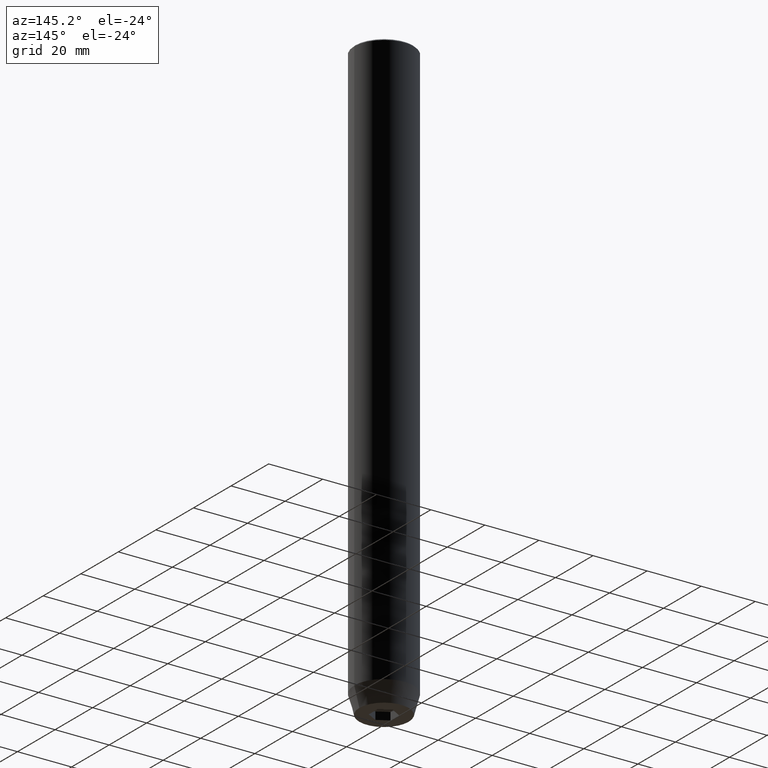
[diagram: clean part render]
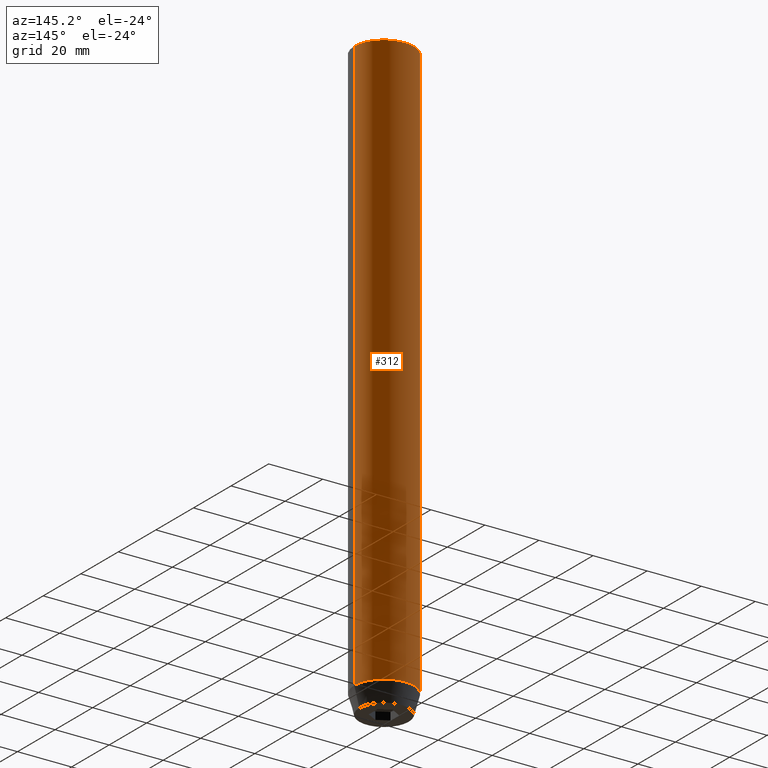
[diagram: same view with one face highlighted and labeled with its STEP entity id]
A machine part, auxiliary view. The second image highlights one B-rep face of the part: STEP entity #312.
In plain terms, the highlighted cylindrical surface (edge-blend (fillet) strip) has radius 11 mm, axis along (-0, -0, 1).
Its self-contained STEP definition (entity closure, byte-faithful):
#19 = EDGE_CURVE ( 'NONE', #83, #443, #28, .T. ) ;
#21 = CARTESIAN_POINT ( 'NONE',  ( 0.000000000000000000, 0.000000000000000000, 0.000000000000000000 ) ) ;
#28 = CIRCLE ( 'NONE', #497, 11.00000000000000000 ) ;
#41 = VECTOR ( 'NONE', #330, 1000.000000000000000 ) ;
#45 = CARTESIAN_POINT ( 'NONE',  ( 11.00000000000000000, 0.000000000000000000, -0.4999999999999726885 ) ) ;
#56 = LINE ( 'NONE', #239, #398 ) ;
#57 = AXIS2_PLACEMENT_3D ( 'NONE', #565, #400, #160 ) ;
#65 = ORIENTED_EDGE ( 'NONE', *, *, #126, .F. ) ;
#71 = ORIENTED_EDGE ( 'NONE', *, *, #319, .T. ) ;
#83 = VERTEX_POINT ( 'NONE', #283 ) ;
#126 = EDGE_CURVE ( 'NONE', #83, #473, #56, .T. ) ;
#131 = CYLINDRICAL_SURFACE ( 'NONE', #581, 11.00000000000000000 ) ;
#133 = CARTESIAN_POINT ( 'NONE',  ( -11.00000000000000000, 1.347111479062088405E-15, -212.9999999999999716 ) ) ;
#160 = DIRECTION ( 'NONE',  ( 1.000000000000000000, 0.000000000000000000, 0.000000000000000000 ) ) ;
#172 = EDGE_LOOP ( 'NONE', ( #256, #211, #71, #65 ) ) ;
#186 = CIRCLE ( 'NONE', #57, 11.00000000000000000 ) ;
#211 = ORIENTED_EDGE ( 'NONE', *, *, #547, .T. ) ;
#239 = CARTESIAN_POINT ( 'NONE',  ( 11.00000000000000000, 0.000000000000000000, 0.000000000000000000 ) ) ;
#256 = ORIENTED_EDGE ( 'NONE', *, *, #19, .T. ) ;
#283 = CARTESIAN_POINT ( 'NONE',  ( 11.00000000000000000, 0.000000000000000000, -212.9999999999999716 ) ) ;
#312 = ADVANCED_FACE ( 'NONE', ( #333 ), #131, .T. ) ;
#319 = EDGE_CURVE ( 'NONE', #343, #473, #186, .T. ) ;
#328 = CARTESIAN_POINT ( 'NONE',  ( -11.00000000000000000, 1.347111479062088405E-15, 0.000000000000000000 ) ) ;
#330 = DIRECTION ( 'NONE',  ( -0.000000000000000000, -0.000000000000000000, 1.000000000000000000 ) ) ;
#331 = CARTESIAN_POINT ( 'NONE',  ( 0.000000000000000000, 0.000000000000000000, -212.9999999999999716 ) ) ;
#333 = FACE_OUTER_BOUND ( 'NONE', #172, .T. ) ;
#343 = VERTEX_POINT ( 'NONE', #533 ) ;
#384 = DIRECTION ( 'NONE',  ( -0.000000000000000000, -0.000000000000000000, 1.000000000000000000 ) ) ;
#398 = VECTOR ( 'NONE', #468, 1000.000000000000000 ) ;
#400 = DIRECTION ( 'NONE',  ( 0.000000000000000000, 0.000000000000000000, -1.000000000000000000 ) ) ;
#426 = DIRECTION ( 'NONE',  ( 1.000000000000000000, 0.000000000000000000, 0.000000000000000000 ) ) ;
#443 = VERTEX_POINT ( 'NONE', #133 ) ;
#468 = DIRECTION ( 'NONE',  ( -0.000000000000000000, -0.000000000000000000, 1.000000000000000000 ) ) ;
#473 = VERTEX_POINT ( 'NONE', #45 ) ;
#492 = DIRECTION ( 'NONE',  ( 1.000000000000000000, 0.000000000000000000, 0.000000000000000000 ) ) ;
#497 = AXIS2_PLACEMENT_3D ( 'NONE', #331, #553, #426 ) ;
#533 = CARTESIAN_POINT ( 'NONE',  ( -11.00000000000000000, 1.347111479062088405E-15, -0.4999999999999726885 ) ) ;
#547 = EDGE_CURVE ( 'NONE', #443, #343, #559, .T. ) ;
#553 = DIRECTION ( 'NONE',  ( -0.000000000000000000, -0.000000000000000000, 1.000000000000000000 ) ) ;
#559 = LINE ( 'NONE', #328, #41 ) ;
#565 = CARTESIAN_POINT ( 'NONE',  ( 0.000000000000000000, 0.000000000000000000, -0.4999999999999726885 ) ) ;
#581 = AXIS2_PLACEMENT_3D ( 'NONE', #21, #384, #492 ) ;